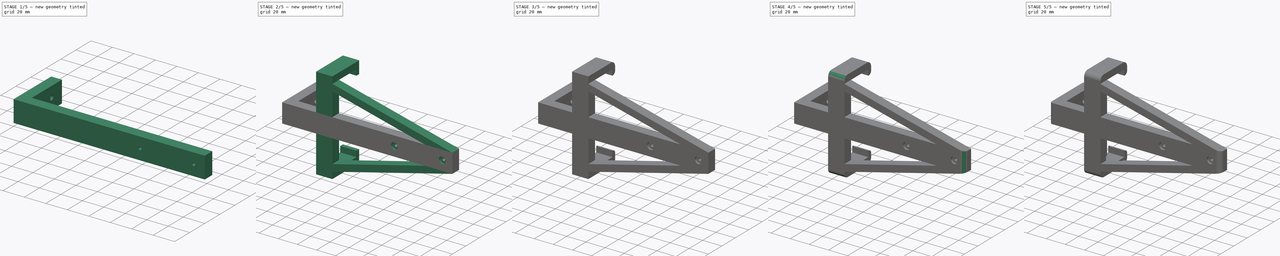
[diagram: build sequence overview — one tinted view per stage of 5, left to right]
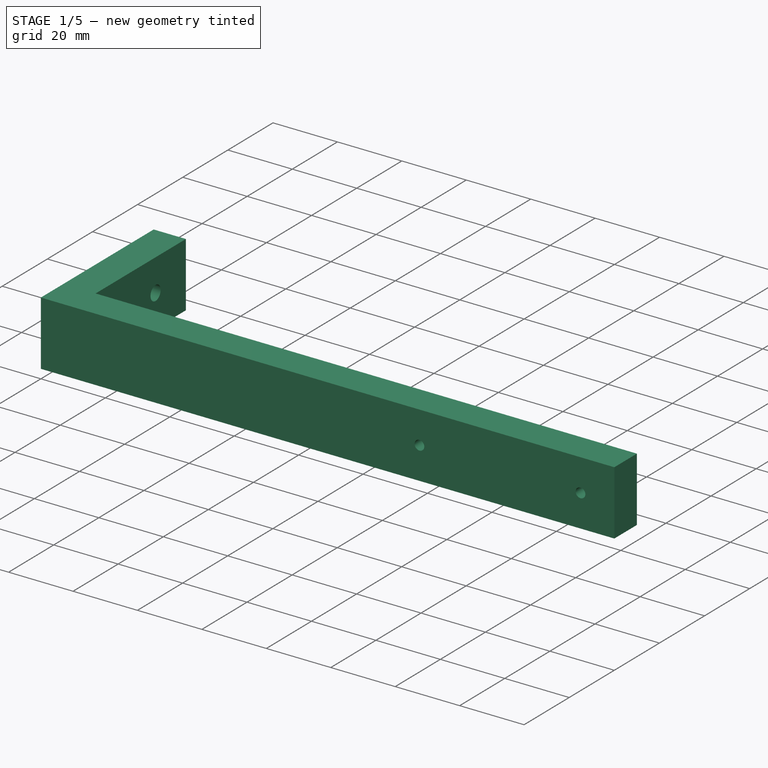
[diagram: stage 1 of 5 — iso view after this stage's code; geometry added in this stage tinted green]
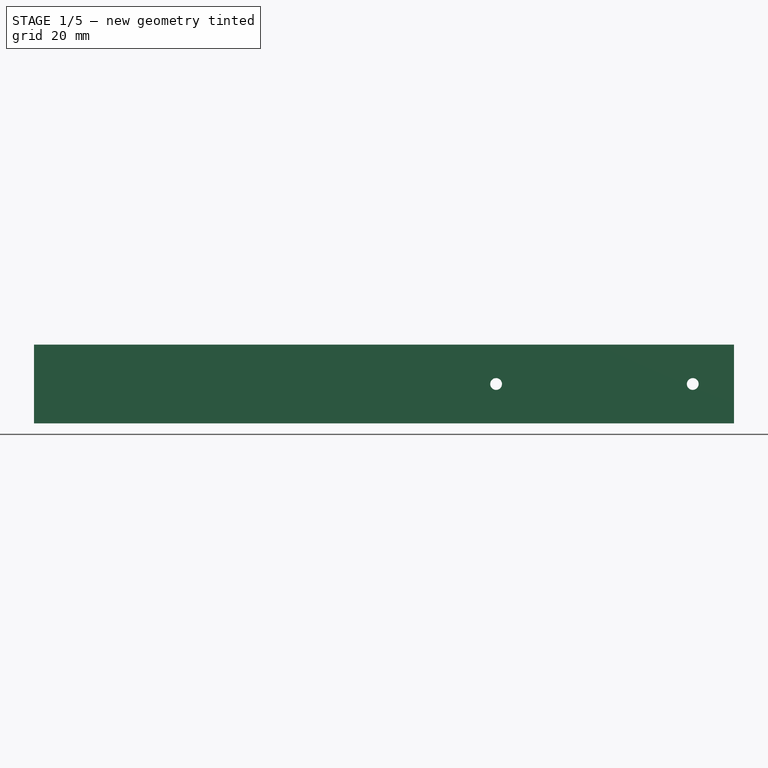
[diagram: stage 1 of 5 — front view after this stage's code; geometry added in this stage tinted green]
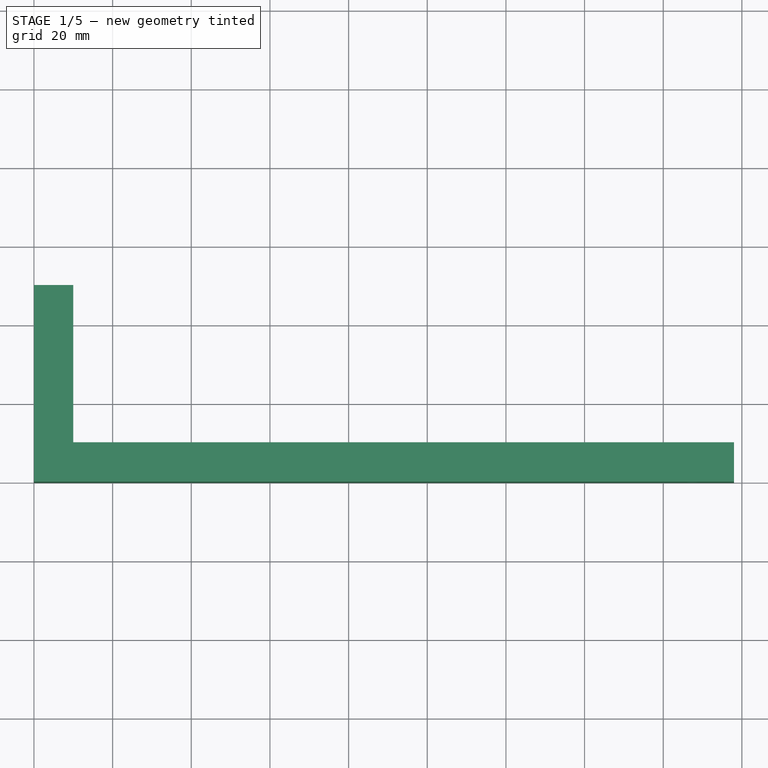
[diagram: stage 1 of 5 — top view after this stage's code; geometry added in this stage tinted green]
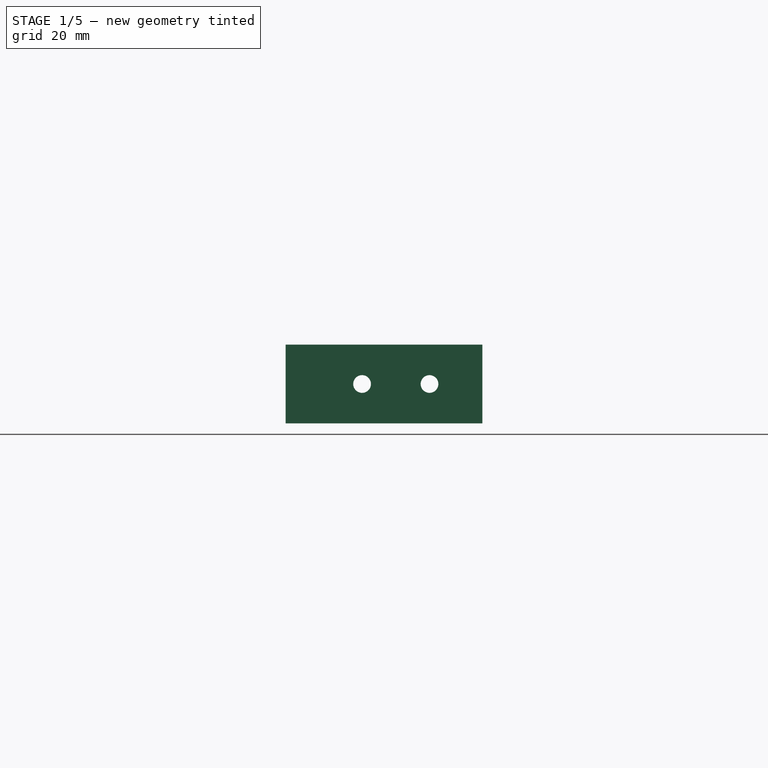
[diagram: stage 1 of 5 — right view after this stage's code; geometry added in this stage tinted green]
FCSTD DOCUMENT  (FreeCAD 1.0R)
Label: dockstation_i-tec_holder
License: All rights reserved
LicenseURL: http://en.wikipedia.org/wiki/All_rights_reserved
objects: PartDesign::Fillet×9, Sketcher::SketchObject×8, PartDesign::Pad×4, PartDesign::Pocket×4, PartDesign::Body×1
note: 68 computed .brp shape members not serialized (recipe doc carries the construction recipe); baked Part::Feature solids carry a one-line shape summary decoded from their .brp

FEATURE [Sketcher::SketchObject] Sketch
  ArcFitTolerance = 0
  AttachmentSupport = -> [XY_Plane001]
  FullyConstrained = true
  MakeInternals = false
  MapMode = 5
  sketch-geometry (6):
    g0: LineSegment StartX=0 StartY=50 StartZ=0 EndX=0 EndY=0 EndZ=0
    g1: LineSegment StartX=0 StartY=0 StartZ=0 EndX=178 EndY=0 EndZ=0
    g2: LineSegment StartX=178 StartY=0 StartZ=0 EndX=178 EndY=10 EndZ=0
    g3: LineSegment StartX=178 StartY=10 StartZ=0 EndX=10 EndY=10 EndZ=0
    g4: LineSegment StartX=10 StartY=10 StartZ=0 EndX=10 EndY=50 EndZ=0
    g5: LineSegment StartX=10 StartY=50 StartZ=0 EndX=0 EndY=50 EndZ=0
  constraints (17):
    c: PointOnObject(g0,g-2)
    c: Coincident(g0,g-1)
    c: Coincident(g1,g0)
    c: PointOnObject(g1,g-1)
    c: Coincident(g2,g1)
    c: Vertical(g2)
    c: Coincident(g3,g2)
    c: Horizontal(g3)
    c: Coincident(g4,g3)
    c: Vertical(g4)
    c: Coincident(g5,g4)
    c: Coincident(g5,g0)
    c: Horizontal(g5)
    c: Distance(g3) = 168
    c: Equal(g2,g5)
    c: Distance(g5) = 10
    c: Distance(g4) = 40
FEATURE [PartDesign::Pad] Pad
  Direction = (0,0,1)
  Length = 20
  Length2 = 10
  Profile = -> Sketch
  ReferenceAxis = -> Sketch [N_Axis]
  Suppressed = false
  Type = 0
FEATURE [Sketcher::SketchObject] Sketch001
  ArcFitTolerance = 0
  AttachmentSupport = -> [Pad]
  ExternalGeometry = -> [Pad]
  FullyConstrained = true
  MakeInternals = false
  MapMode = 5
  Placement = pos=(0,0,0) rot=(1,0,0;1.5708rad)
  sketch-geometry (6):
    g0: LineSegment [constr] StartX=167.5 StartY=20 StartZ=0 EndX=167.5 EndY=10 EndZ=0
    g1: LineSegment [constr] StartX=167.5 StartY=10 StartZ=0 EndX=167.5 EndY=0 EndZ=0
    g2: LineSegment [constr] StartX=167.5 StartY=10 StartZ=0 EndX=117.5 EndY=10 EndZ=0
    g3: LineSegment [constr] StartX=117.5 StartY=10 StartZ=0 EndX=10 EndY=10 EndZ=0
    g4: Circle CenterX=117.5 CenterY=10 CenterZ=0 NormalX=0 NormalY=0 NormalZ=1 AngleXU=0 Radius=1.5
    g5: Circle CenterX=167.5 CenterY=10 CenterZ=0 NormalX=0 NormalY=0 NormalZ=1 AngleXU=0 Radius=1.5
  constraints (17):
    c: PointOnObject(g0,g-4)
    c: Vertical(g0)
    c: Coincident(g1,g0)
    c: PointOnObject(g1,g-1)
    c: Vertical(g1)
    c: Equal(g0,g1)
    c: Coincident(g2,g0)
    c: Horizontal(g2)
    c: Distance(g2) = 50
    c: Coincident(g3,g2)
    c: Horizontal(g3)
    c: Distance(g3) = 107.5
    c: Coincident(g4,g2)
    c: Coincident(g5,g0)
    c: Equal(g4,g5)
    c: Diameter(g4) = 3
    c: PointOnObject(g3,g-5)
FEATURE [PartDesign::Pocket] Pocket
  BaseFeature = -> Pad
  Direction = (0,1,-2e-16)
  Length = 5
  Length2 = 5
  Profile = -> Sketch001
  ReferenceAxis = -> Sketch001 [N_Axis]
  Suppressed = false
  Type = 1
FEATURE [Sketcher::SketchObject] Sketch002
  ArcFitTolerance = 0
  AttachmentSupport = -> [Pocket]
  FullyConstrained = true
  MakeInternals = false
  MapMode = 5
  Placement = pos=(10,0,0) rot=(0.57735,0.57735,0.57735;2.0944rad)
  sketch-geometry (11):
    g0: LineSegment [constr] StartX=8 StartY=20 StartZ=0 EndX=8 EndY=10 EndZ=0
    g1: LineSegment [constr] StartX=8 StartY=10 StartZ=0 EndX=8 EndY=0 EndZ=0
    g2: Circle CenterX=19.4286 CenterY=10 CenterZ=0 NormalX=0 NormalY=0 NormalZ=1 AngleXU=0 Radius=2.25
    g3: Circle CenterX=36.5714 CenterY=10 CenterZ=0 NormalX=0 NormalY=0 NormalZ=1 AngleXU=0 Radius=2.25
    g4: LineSegment [constr] StartX=8 StartY=10 StartZ=0 EndX=13.7143 EndY=10 EndZ=0
    g5: LineSegment [constr] StartX=19.4286 StartY=10 StartZ=0 EndX=13.7143 EndY=10 EndZ=0
    g6: LineSegment [constr] StartX=19.4286 StartY=10 StartZ=0 EndX=25.1429 EndY=10 EndZ=0
    g7: LineSegment [constr] StartX=25.1429 StartY=10 StartZ=0 EndX=30.8571 EndY=10 EndZ=0
    g8: LineSegment [constr] StartX=30.8571 StartY=10 StartZ=0 EndX=36.5714 EndY=10 EndZ=0
    g9: LineSegment [constr] StartX=36.5714 StartY=10 StartZ=0 EndX=42.2857 EndY=10 EndZ=0
    g10: LineSegment [constr] StartX=42.2857 StartY=10 StartZ=0 EndX=48 EndY=10 EndZ=0
  constraints (30):
    c: Coincident(g0,g-3)
    c: Coincident(g1,g0)
    c: Coincident(g1,g-3)
    c: Vertical(g1)
    c: Equal(g0,g1)
    c: Equal(g3,g2)
    c: Diameter(g2) = 4.5
    c: Coincident(g4,g0)
    c: Horizontal(g4)
    c: Coincident(g5,g2)
    c: Coincident(g5,g4)
    c: Horizontal(g5)
    c: Coincident(g6,g2)
    c: Horizontal(g6)
    c: Coincident(g7,g6)
    c: Horizontal(g7)
    c: Coincident(g8,g7)
    c: Coincident(g8,g3)
    c: Horizontal(g8)
    c: Coincident(g9,g3)
    c: Horizontal(g9)
    c: Coincident(g10,g9)
    c: PointOnObject(g10,g-4)
    c: Horizontal(g10)
    c: Equal(g10,g9)
    c: Equal(g9,g8)
    c: Equal(g8,g7)
    c: Equal(g7,g6)
    c: Equal(g6,g5)
    c: Equal(g5,g4)
FEATURE [PartDesign::Pocket] Pocket001
  BaseFeature = -> Pocket
  Direction = (-1,0,0)
  Length = 5
  Length2 = 5
  Profile = -> Sketch002
  ReferenceAxis = -> Sketch002 [N_Axis]
  Suppressed = false
  Type = 1
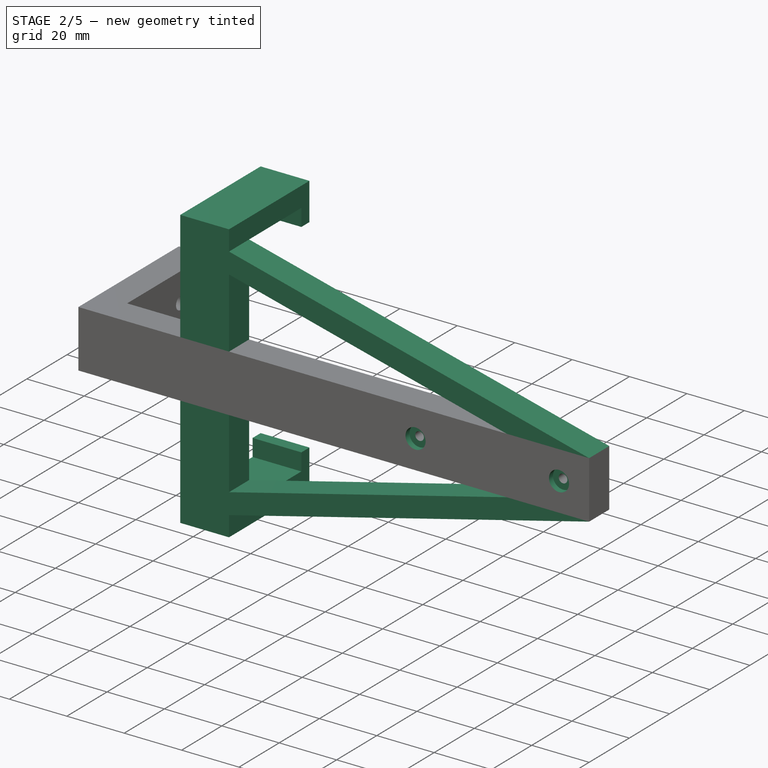
[diagram: stage 2 of 5 — iso view after this stage's code; geometry added in this stage tinted green]
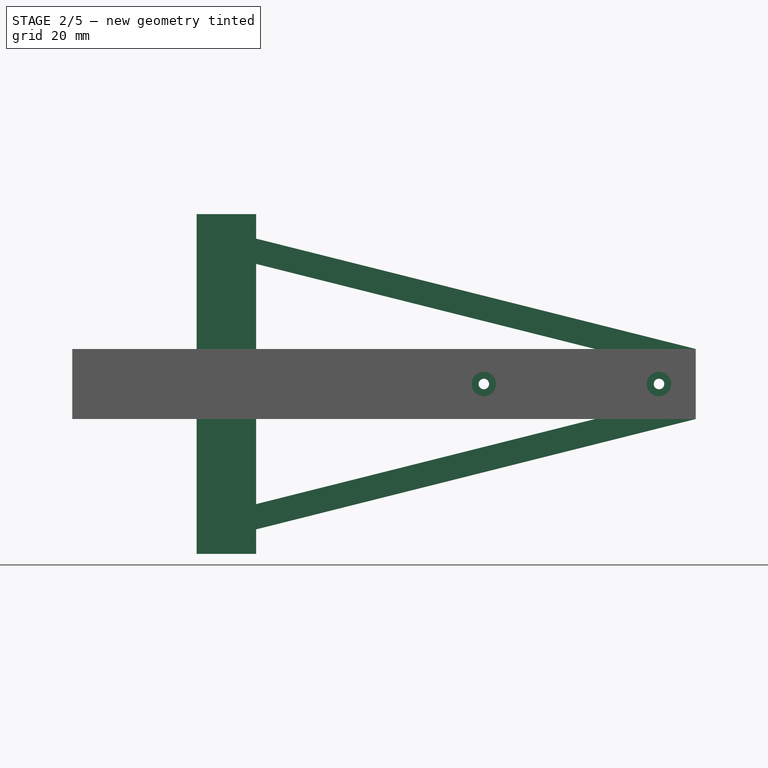
[diagram: stage 2 of 5 — front view after this stage's code; geometry added in this stage tinted green]
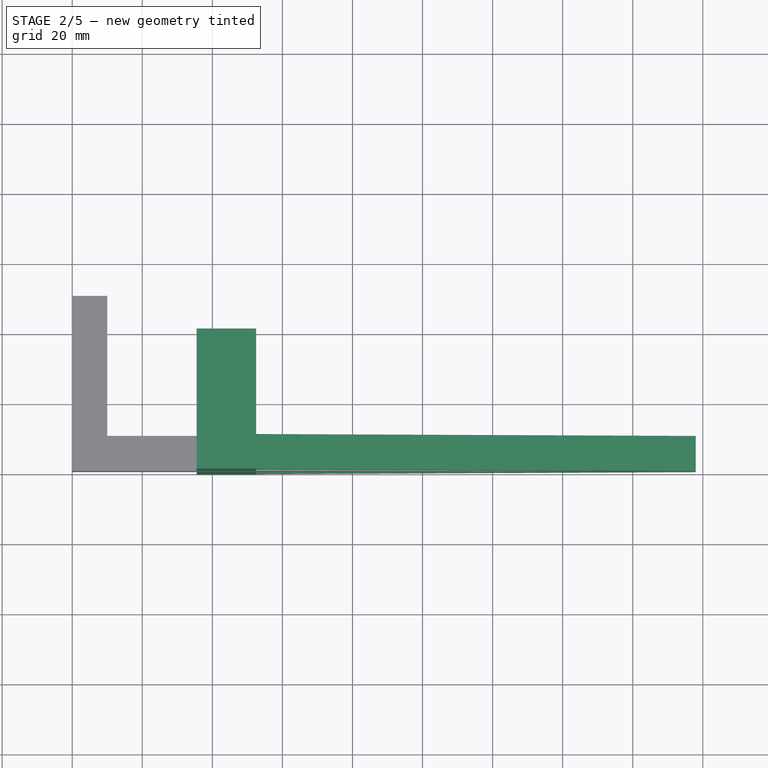
[diagram: stage 2 of 5 — top view after this stage's code; geometry added in this stage tinted green]
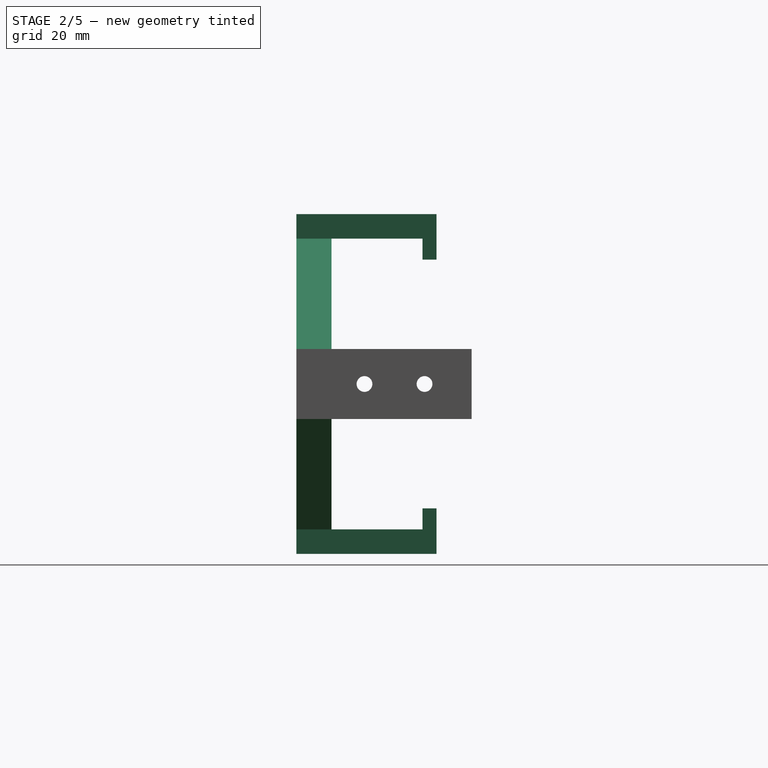
[diagram: stage 2 of 5 — right view after this stage's code; geometry added in this stage tinted green]
FEATURE [Sketcher::SketchObject] Sketch003
  ArcFitTolerance = 1e-06
  AttachmentSupport = -> [Pocket001]
  ExternalGeometry = -> [Pocket001]
  FullyConstrained = true
  MakeInternals = false
  MapMode = 5
  Placement = pos=(0,0,0) rot=(1,0,0;1.5708rad)
  sketch-geometry (2):
    g0: Circle CenterX=117.5 CenterY=10 CenterZ=0 NormalX=0 NormalY=0 NormalZ=1 AngleXU=0 Radius=3.5
    g1: Circle CenterX=167.5 CenterY=10 CenterZ=0 NormalX=0 NormalY=0 NormalZ=1 AngleXU=0 Radius=3.5
  constraints (4):
    c: Coincident(g0,g-3)
    c: Coincident(g1,g-4)
    c: Equal(g1,g0)
    c: Diameter(g0) = 7
FEATURE [PartDesign::Pocket] Pocket002
  BaseFeature = -> Pocket001
  Direction = (0,1,-2e-16)
  Length = 2
  Length2 = 5
  Profile = -> Sketch003
  ReferenceAxis = -> Sketch003 [N_Axis]
  Refine = true
  Suppressed = false
  Type = 0
FEATURE [Sketcher::SketchObject] Sketch004
  ArcFitTolerance = 1e-06
  AttachmentSupport = -> [Pocket002]
  ExternalGeometry = -> [Pocket002]
  FullyConstrained = false
  MakeInternals = false
  MapMode = 5
  Placement = pos=(0,10,0) rot=(0,0.707107,0.707107;3.14159rad)
  sketch-geometry (22):
    g0: LineSegment StartX=-35.5 StartY=20 StartZ=0 EndX=-35.5 EndY=51.5 EndZ=0
    g1: LineSegment StartX=-35.5 StartY=51.5 StartZ=0 EndX=-52.5 EndY=51.5 EndZ=0
    g2: LineSegment StartX=-52.5 StartY=44.2829 StartZ=0 EndX=-52.5 EndY=20 EndZ=0
    g3: LineSegment StartX=-52.5 StartY=20 StartZ=0 EndX=-35.5 EndY=20 EndZ=0
    g4: LineSegment StartX=-52.5 StartY=0 StartZ=0 EndX=-52.5 EndY=-24.2829 EndZ=0
    g5: LineSegment StartX=-52.5 StartY=-31.5 StartZ=0 EndX=-35.5 EndY=-31.5 EndZ=0
    g6: LineSegment StartX=-35.5 StartY=-31.5 StartZ=0 EndX=-35.5 EndY=0 EndZ=0
    g7: LineSegment StartX=-35.5 StartY=0 StartZ=0 EndX=-52.5 EndY=0 EndZ=0
    g8: LineSegment [constr] StartX=-52.5 StartY=0 StartZ=0 EndX=-52.5 EndY=20 EndZ=0
    g9: LineSegment [constr] StartX=-35.5 StartY=0 StartZ=0 EndX=-35.5 EndY=20 EndZ=0
    g10: LineSegment [constr] StartX=-10 StartY=20 StartZ=0 EndX=-10 EndY=51.5 EndZ=0
    g11: LineSegment [constr] StartX=-10 StartY=51.5 StartZ=0 EndX=-35.5 EndY=51.5 EndZ=0
    g12: LineSegment [constr] StartX=-21.8603 StartY=51.5 StartZ=0 EndX=-21.8603 EndY=-31.5 EndZ=0
    g13: LineSegment StartX=-178 StartY=20 StartZ=0 EndX=-52.5 EndY=51.5 EndZ=0
    g14: LineSegment StartX=-52.5 StartY=44.2829 StartZ=0 EndX=-149.246 EndY=20 EndZ=0
    g15: LineSegment StartX=-149.246 StartY=20 StartZ=0 EndX=-178 EndY=20 EndZ=0
    g16: LineSegment [constr] StartX=-52.5 StartY=44.2829 StartZ=0 EndX=-52.5 EndY=51.5 EndZ=0
    g17: LineSegment [constr] StartX=-52.5 StartY=44.2829 StartZ=0 EndX=-54.2041 EndY=51.0723 EndZ=0
    g18: LineSegment [constr] StartX=-52.5 StartY=-24.2829 StartZ=0 EndX=-52.5 EndY=-31.5 EndZ=0
    g19: LineSegment StartX=-52.5 StartY=-31.5 StartZ=0 EndX=-178 EndY=0 EndZ=0
    g20: LineSegment StartX=-149.246 StartY=0 StartZ=0 EndX=-52.5 EndY=-24.2829 EndZ=0
    g21: LineSegment StartX=-178 StartY=0 StartZ=0 EndX=-149.246 EndY=0 EndZ=0
  constraints (59):
    c: Coincident(g0,g1)
    c: Coincident(g2,g3)
    c: Coincident(g3,g0)
    c: Vertical(g0)
    c: Vertical(g2)
    c: Horizontal(g1)
    c: Horizontal(g3)
    c: PointOnObject(g0,g-3)
    c: Coincident(g5,g6)
    c: Coincident(g6,g7)
    c: Coincident(g7,g4)
    c: Vertical(g4)
    c: Vertical(g6)
    c: Horizontal(g5)
    c: Horizontal(g7)
    c: PointOnObject(g4,g-4)
    c: Coincident(g8,g4)
    c: Coincident(g8,g2)
    c: Vertical(g8)
    c: Coincident(g9,g0)
    c: Vertical(g9)
    c: Equal(g6,g0)
    c: Coincident(g10,g-3)
    c: Vertical(g10)
    c: Coincident(g11,g10)
    c: Horizontal(g11)
    c: DistanceX(g11,g11) = 25.5
    c: Coincident(g0,g11)
    c: DistanceX(g1,g1) = 17
    c: Coincident(g6,g9)
    c: PointOnObject(g12,g1)
    c: PointOnObject(g12,g5)
    c: Vertical(g12)
    c: DistanceY(g12,g12) = 83
    c: Coincident(g13,g-3)
    c: Coincident(g13,g1)
    c: Coincident(g14,g2)
    c: PointOnObject(g14,g-3)
    c: Coincident(g15,g14)
    c: Coincident(g15,g13)
    c: Parallel(g14,g13)
    c: Coincident(g16,g2)
    c: Coincident(g16,g1)
    c: Vertical(g16)
    c: Coincident(g17,g2)
    c: PointOnObject(g17,g13)
    c: Perpendicular(g13,g17)
    c: Distance(g17,g17) = 7
    c: Coincident(g18,g4)
    c: Coincident(g18,g5)
    c: Vertical(g18)
    c: Coincident(g19,g5)
    c: Coincident(g19,g-4)
    c: Coincident(g20,g4)
    c: Equal(g16,g18)
    c: Parallel(g19,g20)
    c: Coincident(g21,g19)
    c: Coincident(g21,g20)
    c: Horizontal(g21)
FEATURE [PartDesign::Pad] Pad001
  BaseFeature = -> Pocket002
  Direction = (0,1,-2e-16)
  Length = 10
  Length2 = 10
  Profile = -> Sketch004
  ReferenceAxis = -> Sketch004 [N_Axis]
  Refine = true
  Reversed = true
  Suppressed = false
  Type = 0
FEATURE [Sketcher::SketchObject] Sketch006
  ArcFitTolerance = 1e-06
  AttachmentSupport = -> [Pad001]
  ExternalGeometry = -> [Pad001]
  FullyConstrained = true
  MakeInternals = false
  MapMode = 5
  Placement = pos=(0,2.63034e-11,0) rot=(1,0,0;1.5708rad)
  sketch-geometry (8):
    g0: LineSegment StartX=35.5 StartY=51.5 StartZ=0 EndX=52.5 EndY=51.5 EndZ=0
    g1: LineSegment StartX=52.5 StartY=51.5 StartZ=0 EndX=52.5 EndY=58.5 EndZ=0
    g2: LineSegment StartX=52.5 StartY=58.5 StartZ=0 EndX=35.5 EndY=58.5 EndZ=0
    g3: LineSegment StartX=35.5 StartY=58.5 StartZ=0 EndX=35.5 EndY=51.5 EndZ=0
    g4: LineSegment StartX=35.5 StartY=-31.5 StartZ=0 EndX=35.5 EndY=-38.5 EndZ=0
    g5: LineSegment StartX=35.5 StartY=-38.5 StartZ=0 EndX=52.5 EndY=-38.5 EndZ=0
    g6: LineSegment StartX=52.5 StartY=-38.5 StartZ=0 EndX=52.5 EndY=-31.5 EndZ=0
    g7: LineSegment StartX=52.5 StartY=-31.5 StartZ=0 EndX=35.5 EndY=-31.5 EndZ=0
  constraints (20):
    c: Coincident(g0,g1)
    c: Coincident(g1,g2)
    c: Coincident(g2,g3)
    c: Coincident(g3,g0)
    c: Horizontal(g2)
    c: Vertical(g1)
    c: Vertical(g3)
    c: Coincident(g0,g-3)
    c: Coincident(g4,g5)
    c: Coincident(g5,g6)
    c: Coincident(g6,g7)
    c: Coincident(g7,g4)
    c: Vertical(g4)
    c: Vertical(g6)
    c: Horizontal(g5)
    c: Coincident(g4,g-4)
    c: Coincident(g-4,g6)
    c: Coincident(g-3,g0)
    c: Equal(g6,g1)
    c: Distance(g1,g1) = 7
FEATURE [PartDesign::Pad] Pad002
  BaseFeature = -> Pad001
  Direction = (8.94e-14,-1,2e-16)
  Length = 36
  Length2 = 10
  Profile = -> Sketch006
  ReferenceAxis = -> Sketch006 [N_Axis]
  Refine = true
  Reversed = true
  Suppressed = false
  Type = 0
FEATURE [Sketcher::SketchObject] Sketch007
  ArcFitTolerance = 1e-06
  AttachmentSupport = -> [Pad002]
  ExternalGeometry = -> [Pad002]
  FullyConstrained = true
  MakeInternals = false
  MapMode = 5
  Placement = pos=(-3.2174e-12,36,-8e-15) rot=(0,0.707107,0.707107;3.14159rad)
  sketch-geometry (8):
    g0: LineSegment StartX=-52.5 StartY=-38.5 StartZ=0 EndX=-35.5 EndY=-38.5 EndZ=0
    g1: LineSegment StartX=-35.5 StartY=-38.5 StartZ=0 EndX=-35.5 EndY=-25.5 EndZ=0
    g2: LineSegment StartX=-35.5 StartY=-25.5 StartZ=0 EndX=-52.5 EndY=-25.5 EndZ=0
    g3: LineSegment StartX=-52.5 StartY=-25.5 StartZ=0 EndX=-52.5 EndY=-38.5 EndZ=0
    g4: LineSegment StartX=-52.5 StartY=58.5 StartZ=0 EndX=-52.5 EndY=45.5 EndZ=0
    g5: LineSegment StartX=-52.5 StartY=45.5 StartZ=0 EndX=-35.5 EndY=45.5 EndZ=0
    g6: LineSegment StartX=-35.5 StartY=45.5 StartZ=0 EndX=-35.5 EndY=58.5 EndZ=0
    g7: LineSegment StartX=-35.5 StartY=58.5 StartZ=0 EndX=-52.5 EndY=58.5 EndZ=0
  constraints (20):
    c: Coincident(g0,g1)
    c: Coincident(g1,g2)
    c: Coincident(g2,g3)
    c: Coincident(g3,g0)
    c: Horizontal(g2)
    c: Vertical(g1)
    c: Vertical(g3)
    c: Coincident(g0,g-4)
    c: Coincident(g4,g5)
    c: Coincident(g5,g6)
    c: Coincident(g6,g7)
    c: Coincident(g7,g4)
    c: Vertical(g4)
    c: Vertical(g6)
    c: Horizontal(g5)
    c: Coincident(g4,g-3)
    c: Coincident(g-3,g6)
    c: Coincident(g-4,g0)
    c: Equal(g1,g6)
    c: DistanceY(g4,g4) = 13
FEATURE [PartDesign::Pad] Pad003
  BaseFeature = -> Pad002
  Direction = (-8.94e-14,1,-2e-16)
  Length = 4
  Length2 = 10
  Profile = -> Sketch007
  ReferenceAxis = -> Sketch007 [N_Axis]
  Refine = true
  Suppressed = false
  Type = 0
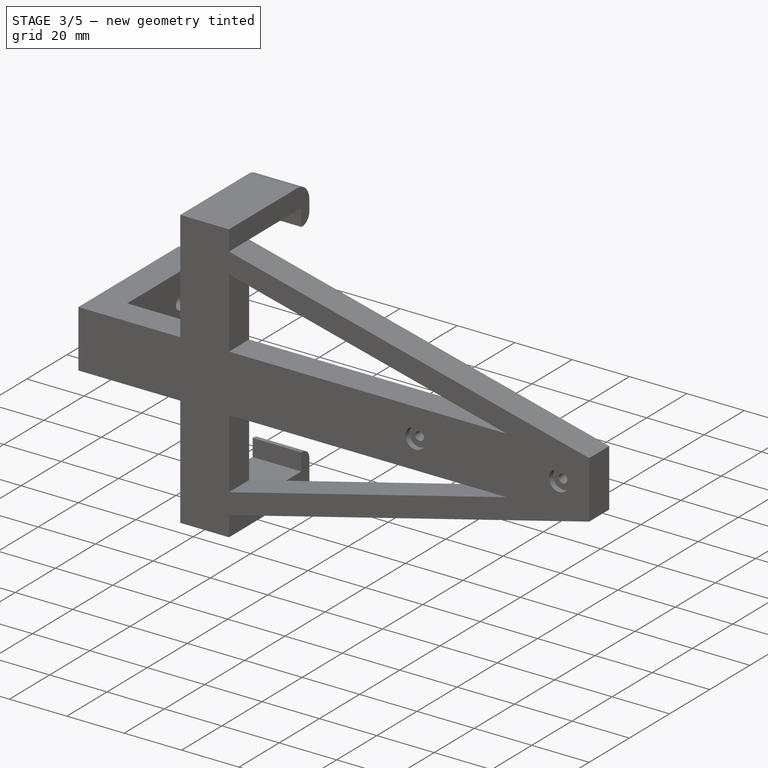
[diagram: stage 3 of 5 — iso view after this stage's code; geometry added in this stage tinted green]
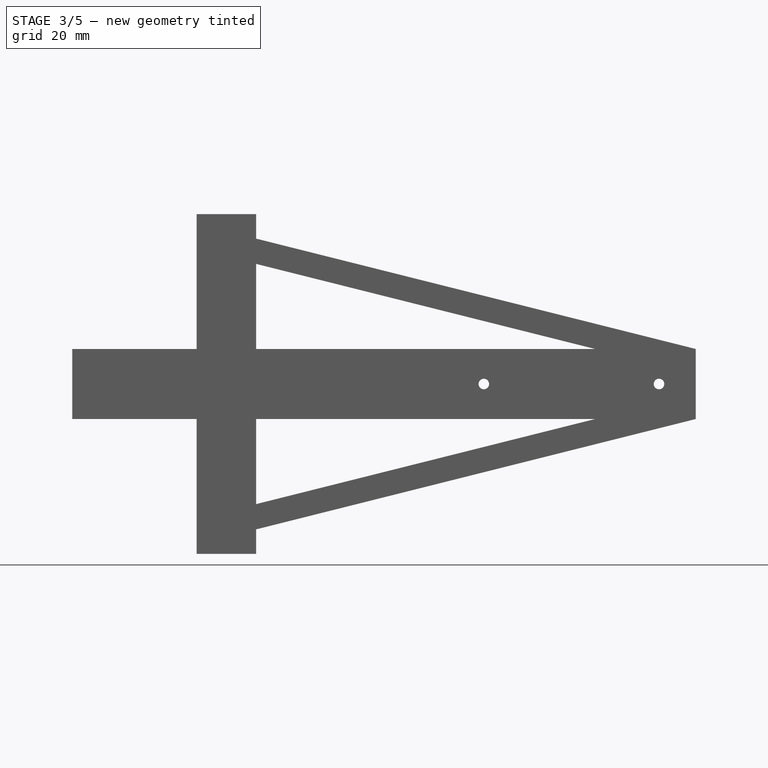
[diagram: stage 3 of 5 — front view after this stage's code; geometry added in this stage tinted green]
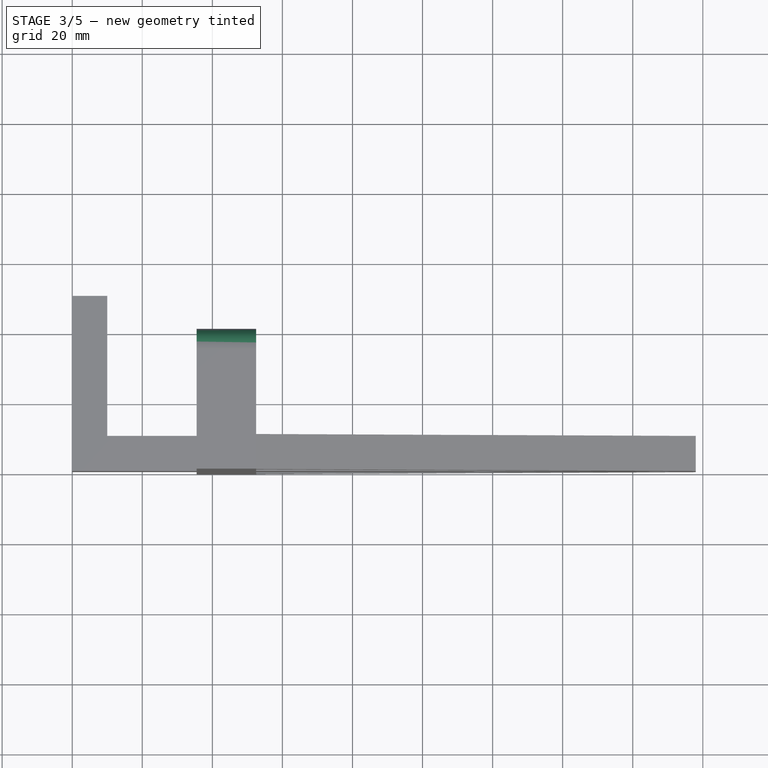
[diagram: stage 3 of 5 — top view after this stage's code; geometry added in this stage tinted green]
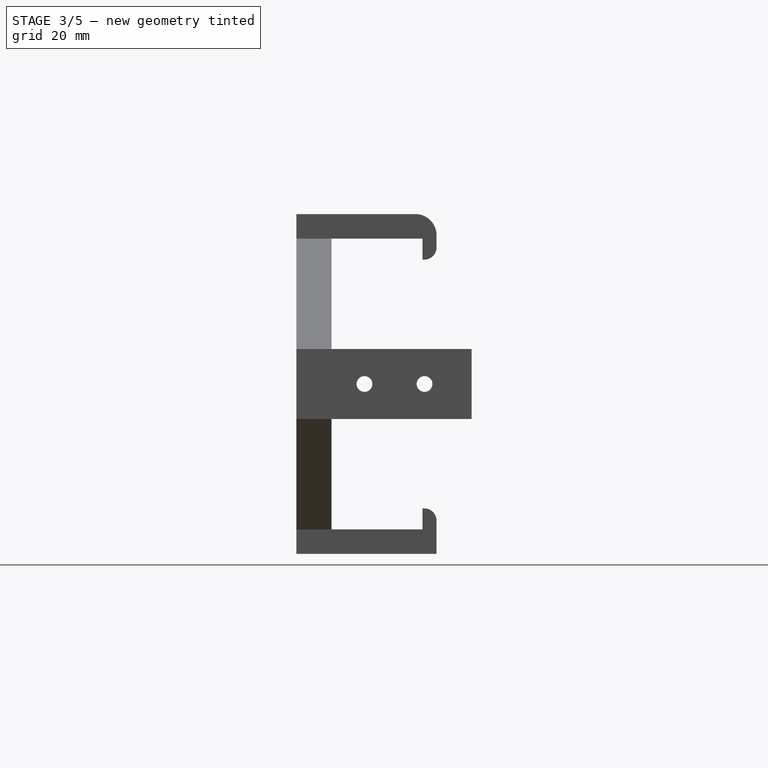
[diagram: stage 3 of 5 — right view after this stage's code; geometry added in this stage tinted green]
FEATURE [PartDesign::Fillet] Fillet
  Base = -> Pad003 [Edge93]
  BaseFeature = -> Pad003
  Radius = 3.5
  Refine = true
  SupportTransform = false
  Suppressed = false
  UseAllEdges = false
FEATURE [PartDesign::Fillet] Fillet001
  Base = -> Fillet [Edge103]
  BaseFeature = -> Fillet
  Radius = 3.5
  Refine = true
  SupportTransform = false
  Suppressed = false
  UseAllEdges = false
FEATURE [PartDesign::Fillet] Fillet002
  Base = -> Fillet001 [Edge97]
  BaseFeature = -> Fillet001
  Radius = 6
  Refine = true
  SupportTransform = false
  Suppressed = false
  UseAllEdges = false
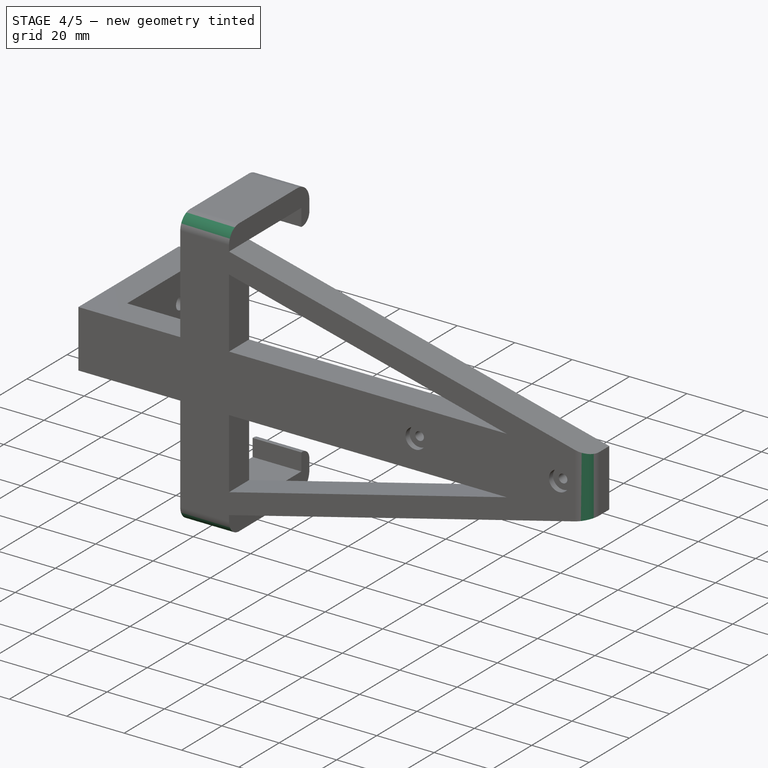
[diagram: stage 4 of 5 — iso view after this stage's code; geometry added in this stage tinted green]
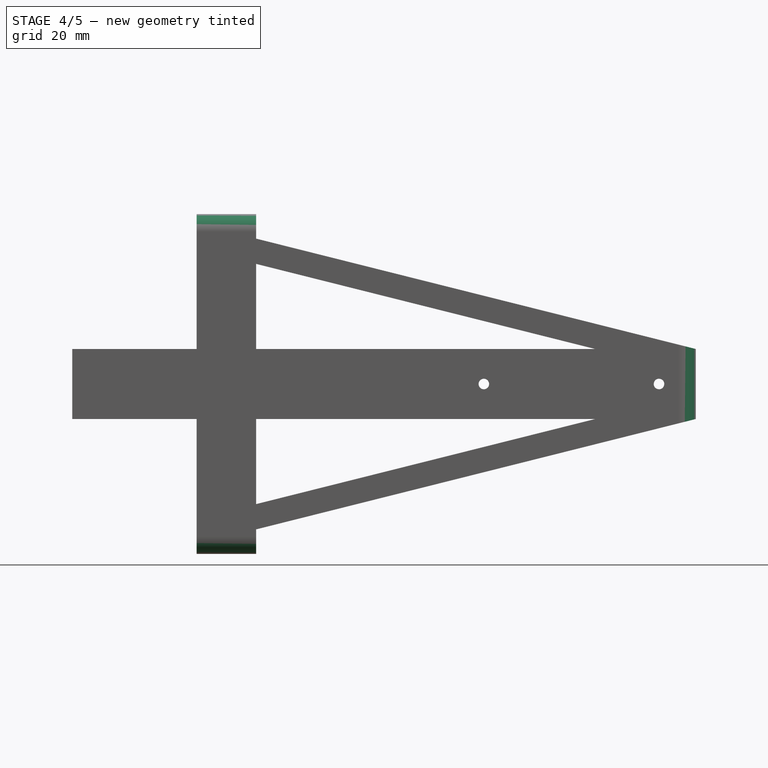
[diagram: stage 4 of 5 — front view after this stage's code; geometry added in this stage tinted green]
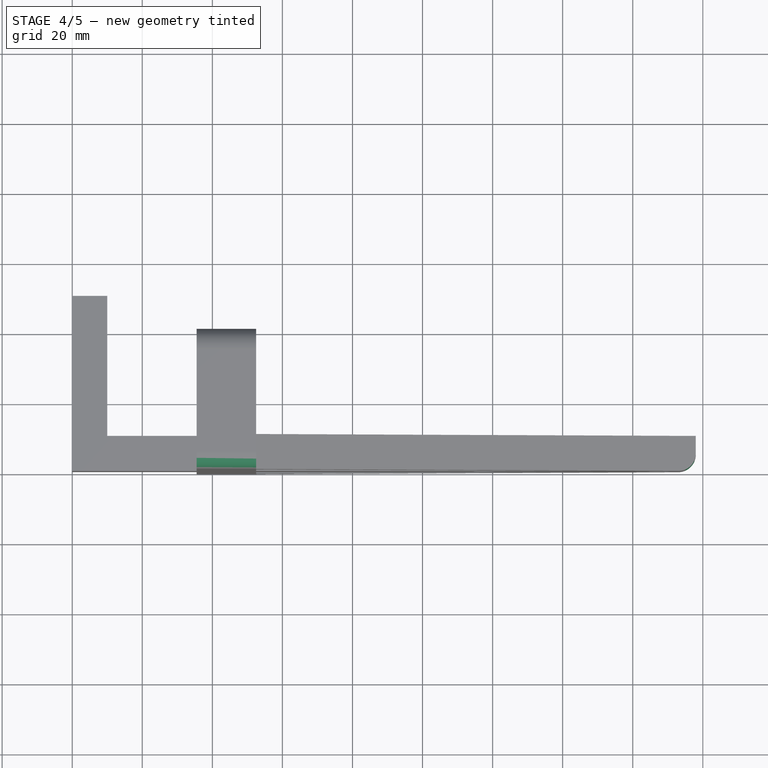
[diagram: stage 4 of 5 — top view after this stage's code; geometry added in this stage tinted green]
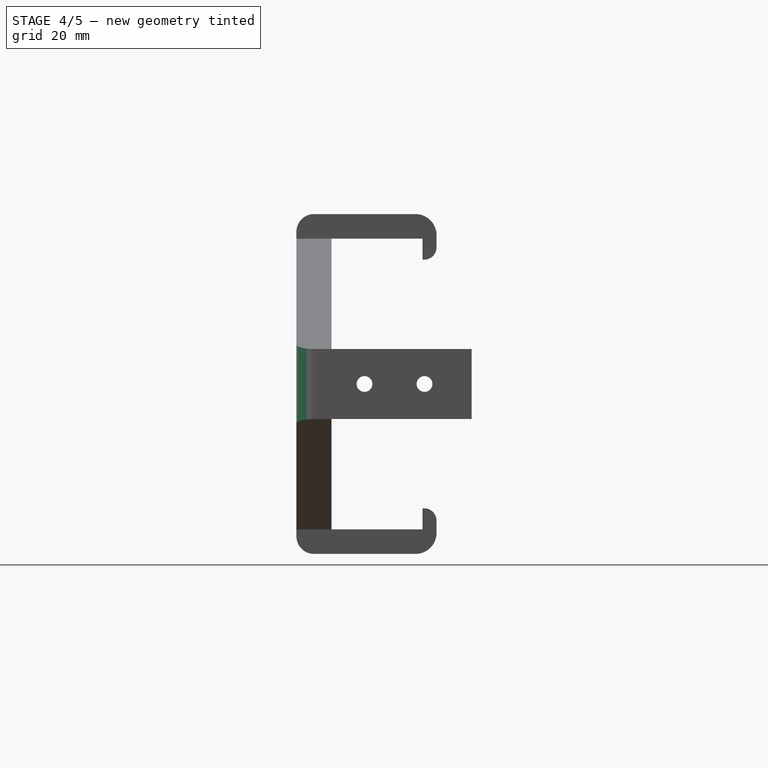
[diagram: stage 4 of 5 — right view after this stage's code; geometry added in this stage tinted green]
FEATURE [PartDesign::Fillet] Fillet003
  Base = -> Fillet002 [Edge77]
  BaseFeature = -> Fillet002
  Radius = 6
  Refine = true
  SupportTransform = false
  Suppressed = false
  UseAllEdges = false
FEATURE [PartDesign::Fillet] Fillet004
  Base = -> Fillet003 [Edge18]
  BaseFeature = -> Fillet003
  Radius = 5
  Refine = true
  SupportTransform = false
  Suppressed = false
  UseAllEdges = false
FEATURE [PartDesign::Fillet] Fillet005
  Base = -> Fillet004 [Edge27]
  BaseFeature = -> Fillet004
  Radius = 5
  Refine = true
  SupportTransform = false
  Suppressed = false
  UseAllEdges = false
FEATURE [PartDesign::Fillet] Fillet006
  Base = -> Fillet005 [Edge8]
  BaseFeature = -> Fillet005
  Radius = 5
  Refine = true
  SupportTransform = false
  Suppressed = false
  UseAllEdges = false
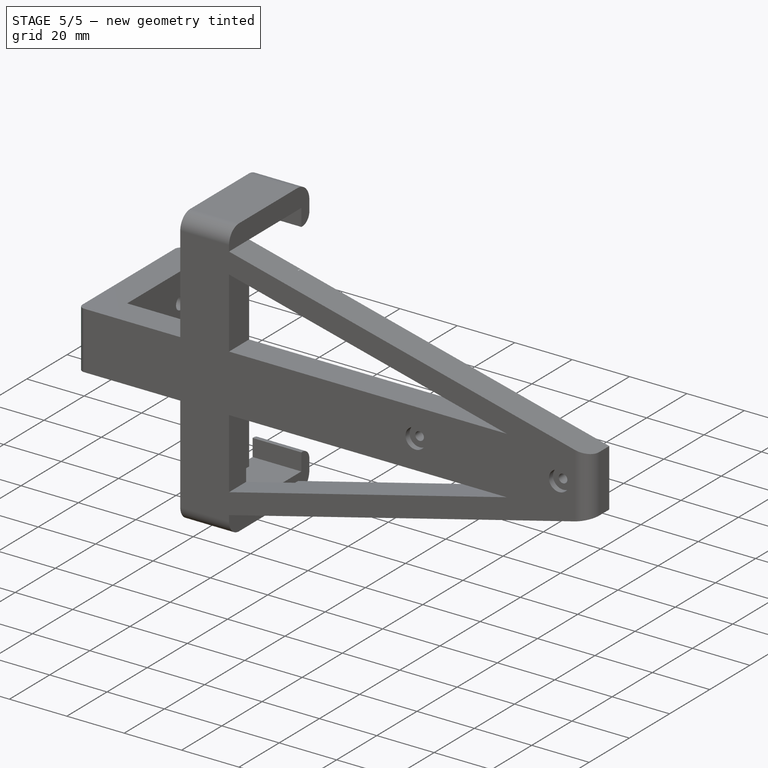
[diagram: stage 5 of 5 — iso view after this stage's code; geometry added in this stage tinted green]
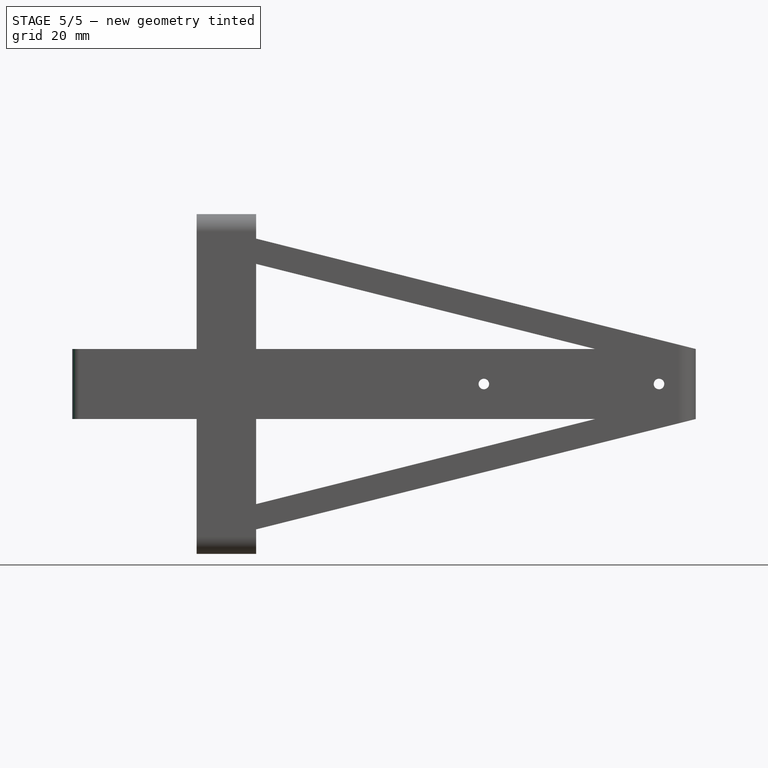
[diagram: stage 5 of 5 — front view after this stage's code; geometry added in this stage tinted green]
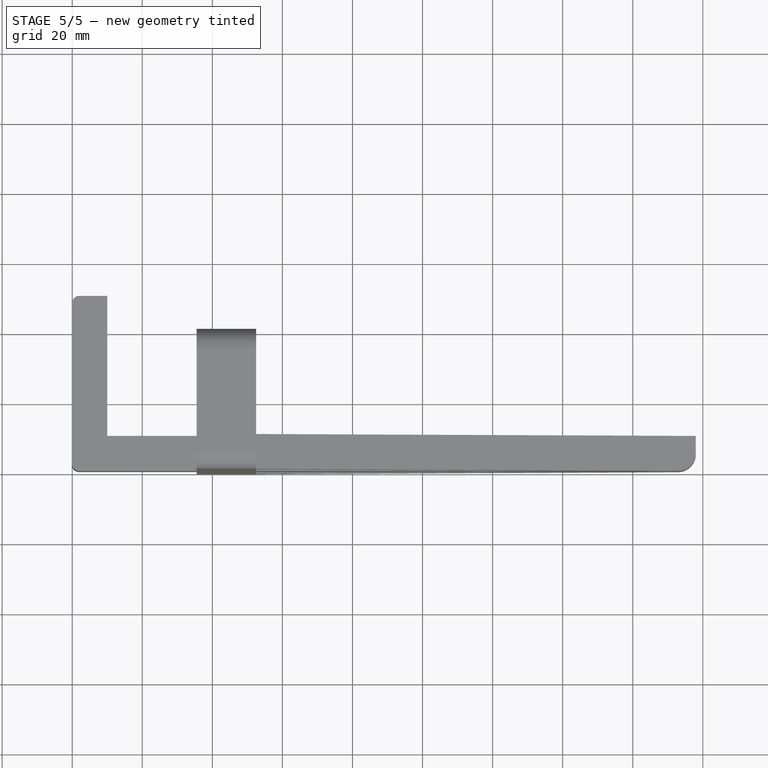
[diagram: stage 5 of 5 — top view after this stage's code; geometry added in this stage tinted green]
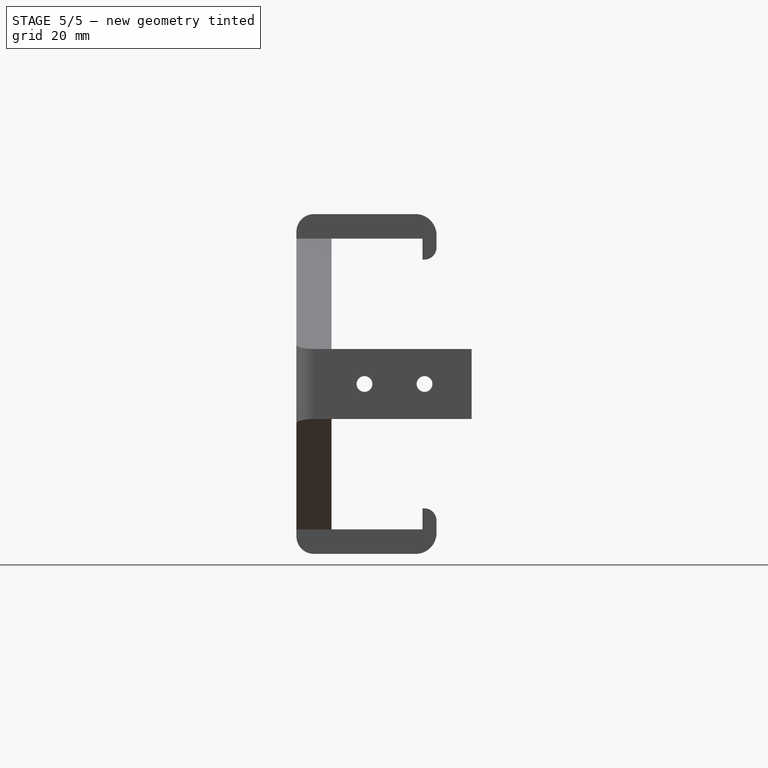
[diagram: stage 5 of 5 — right view after this stage's code; geometry added in this stage tinted green]
FEATURE [PartDesign::Fillet] Fillet007
  Base = -> Fillet006 [Edge11]
  BaseFeature = -> Fillet006
  Radius = 2
  Refine = true
  SupportTransform = false
  Suppressed = false
  UseAllEdges = false
FEATURE [PartDesign::Fillet] Fillet008
  Base = -> Fillet007 [Edge95]
  BaseFeature = -> Fillet007
  Radius = 2
  Refine = true
  SupportTransform = false
  Suppressed = false
  UseAllEdges = false
FEATURE [Sketcher::SketchObject] Sketch008
  ArcFitTolerance = 1e-06
  AttachmentSupport = -> [Fillet008]
  ExternalGeometry = -> [Fillet008]
  FullyConstrained = true
  MakeInternals = false
  MapMode = 5
  Placement = pos=(35.5,3.2251e-12,3.074e-13) rot=(0.57735,-0.57735,-0.57735;2.0944rad)
  sketch-geometry (16):
    g0: LineSegment StartX=-10 StartY=47 StartZ=0 EndX=-10 EndY=40 EndZ=0
    g1: LineSegment StartX=-10 StartY=40 StartZ=0 EndX=-8.5 EndY=40 EndZ=0
    g2: LineSegment StartX=-8.5 StartY=40 StartZ=0 EndX=-8.5 EndY=47 EndZ=0
    g3: LineSegment StartX=-8.5 StartY=47 StartZ=0 EndX=-10 EndY=47 EndZ=0
    g4: LineSegment StartX=-10 StartY=-20 StartZ=0 EndX=-10 EndY=-27 EndZ=0
    g5: LineSegment StartX=-10 StartY=-27 StartZ=0 EndX=-8.5 EndY=-27 EndZ=0
    g6: LineSegment StartX=-8.5 StartY=-27 StartZ=0 EndX=-8.5 EndY=-20 EndZ=0
    g7: LineSegment StartX=-8.5 StartY=-20 StartZ=0 EndX=-10 EndY=-20 EndZ=0
    g8: LineSegment [constr] StartX=-8.5 StartY=40 StartZ=0 EndX=-8.5 EndY=-20 EndZ=0
    g9: LineSegment [constr] StartX=-8.5 StartY=40 StartZ=0 EndX=-10 EndY=20 EndZ=0
    g10: LineSegment [constr] StartX=-10 StartY=-3.055e-13 StartZ=0 EndX=-8.5 EndY=-20 EndZ=0
    g11: LineSegment [constr] StartX=-10 StartY=-20 StartZ=0 EndX=-9.25 EndY=-23.5 EndZ=0
    g12: LineSegment [constr] StartX=-8.5 StartY=-27 StartZ=0 EndX=-9.25 EndY=-23.5 EndZ=0
    g13: LineSegment [constr] StartX=-10 StartY=47 StartZ=0 EndX=-9.25 EndY=43.5 EndZ=0
    g14: LineSegment [constr] StartX=-9.25 StartY=43.5 StartZ=0 EndX=-8.5 EndY=40 EndZ=0
    g15: LineSegment [constr] StartX=-9.25 StartY=43.5 StartZ=0 EndX=-9.25 EndY=-23.5 EndZ=0
  constraints (42):
    c: Coincident(g0,g1)
    c: Coincident(g1,g2)
    c: Coincident(g2,g3)
    c: Coincident(g3,g0)
    c: Vertical(g0)
    c: Vertical(g2)
    c: Horizontal(g1)
    c: Horizontal(g3)
    c: Coincident(g4,g5)
    c: Coincident(g5,g6)
    c: Coincident(g6,g7)
    c: Coincident(g7,g4)
    c: Vertical(g4)
    c: Vertical(g6)
    c: Horizontal(g5)
    c: Horizontal(g7)
    c: Equal(g4,g0)
    c: Equal(g3,g7)
    c: Coincident(g8,g1)
    c: Coincident(g8,g6)
    c: Vertical(g8)
    c: Coincident(g9,g1)
    c: Coincident(g9,g-3)
    c: Coincident(g10,g-4)
    c: Coincident(g10,g6)
    c: Equal(g10,g9)
    c: PointOnObject(g0,g-3)
    c: DistanceX(g5,g5) = 1.5
    c: Distance(g4,g4) = 7
    c: Coincident(g11,g4)
    c: Coincident(g12,g5)
    c: Coincident(g12,g11)
    c: Equal(g12,g11)
    c: Parallel(g12,g11)
    c: Coincident(g13,g0)
    c: Coincident(g14,g13)
    c: Coincident(g14,g1)
    c: Equal(g14,g13)
    c: Parallel(g14,g13)
    c: Coincident(g15,g13)
    c: Coincident(g15,g11)
    c: DistanceY(g15,g15) = 67
FEATURE [PartDesign::Pocket] Pocket003
  BaseFeature = -> Fillet008
  Direction = (1,9.08e-14,8.7e-15)
  Length = 3
  Length2 = -35
  Profile = -> Sketch008
  ReferenceAxis = -> Sketch008 [N_Axis]
  Refine = true
  Suppressed = false
  Type = 4
FEATURE [PartDesign::Body] Body001
  AllowCompound = false
  Group = -> [Sketch,Pad,Sketch001,Pocket,Sketch002,Pocket001,Sketch003,Pocket002,Sketch004,Pad001,Sketch006,Pad002,Sketch007,Pad003,Fillet,Fillet001,Fillet002,Fillet003,Fillet004,Fillet005,Fillet006,Fillet007,Fillet008,Sketch008,Pocket003]
  Origin = -> Origin001
  Tip = -> Pocket003
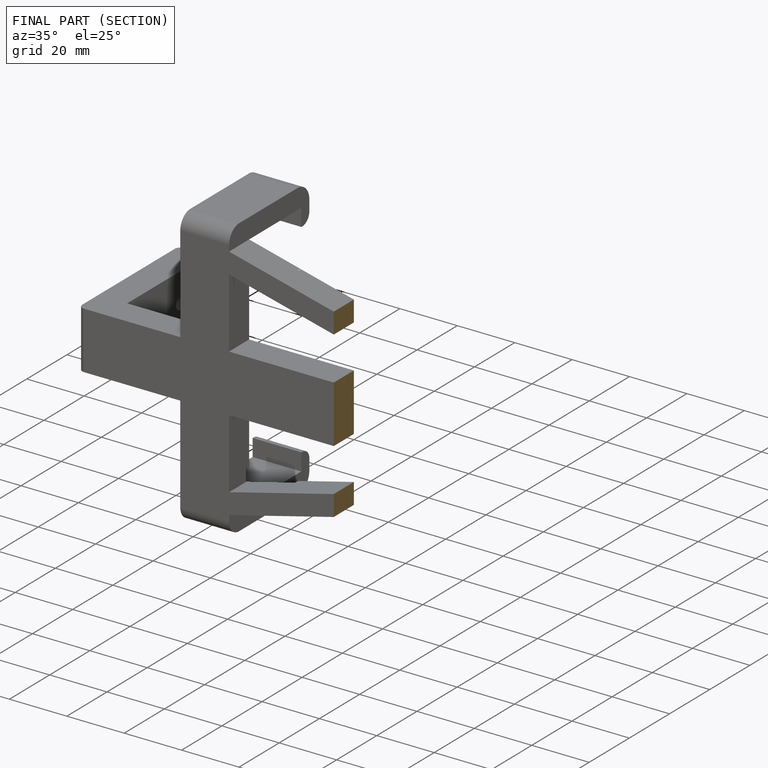
[diagram: finished part — half-section view (interior)]
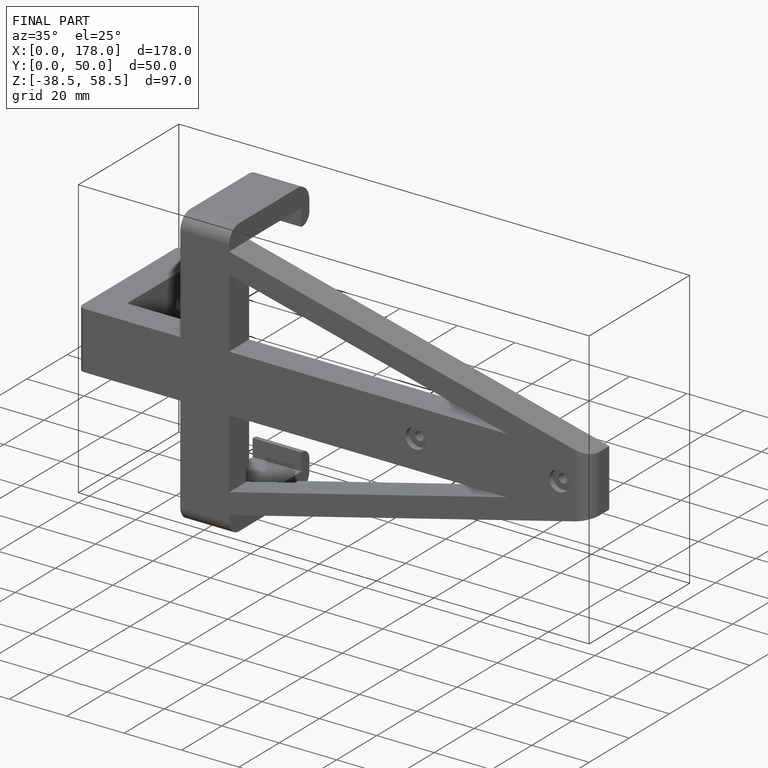
[diagram: finished part — iso view with bounding-box wireframe]
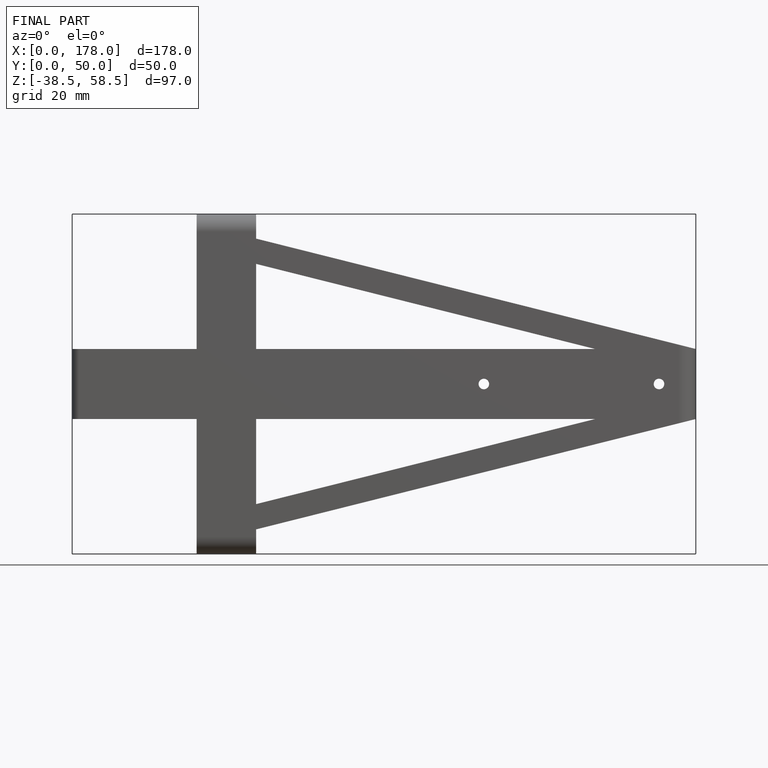
[diagram: finished part — front view with bounding-box wireframe]
